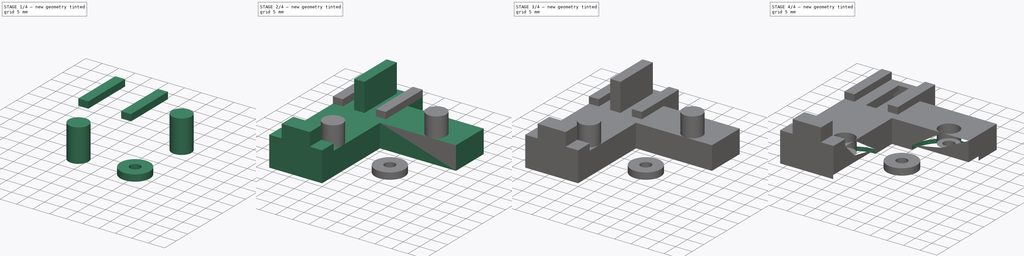
[diagram: build sequence overview — one tinted view per stage of 4, left to right]
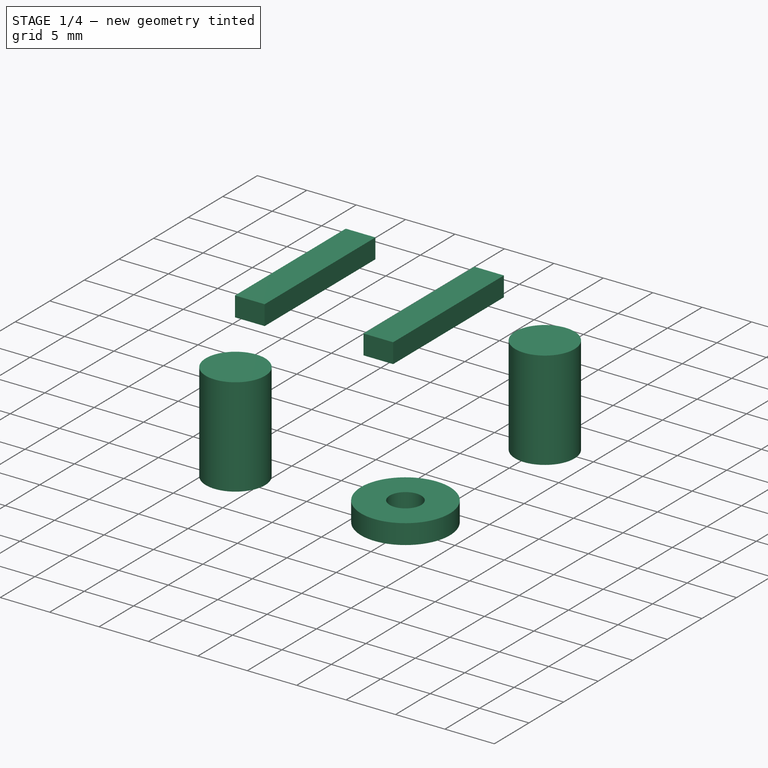
[diagram: stage 1 of 4 — iso view after this stage's code; geometry added in this stage tinted green]
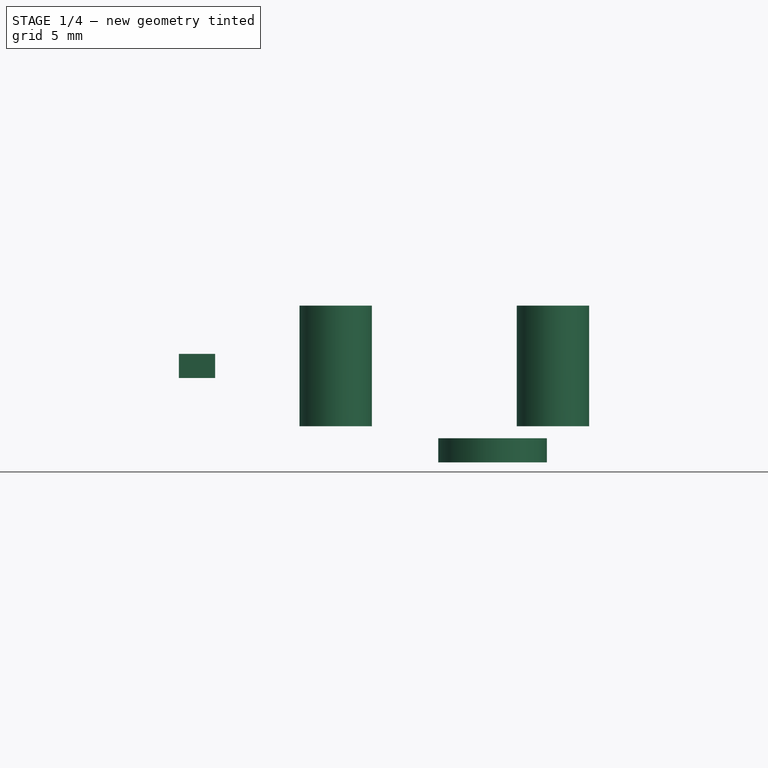
[diagram: stage 1 of 4 — front view after this stage's code; geometry added in this stage tinted green]
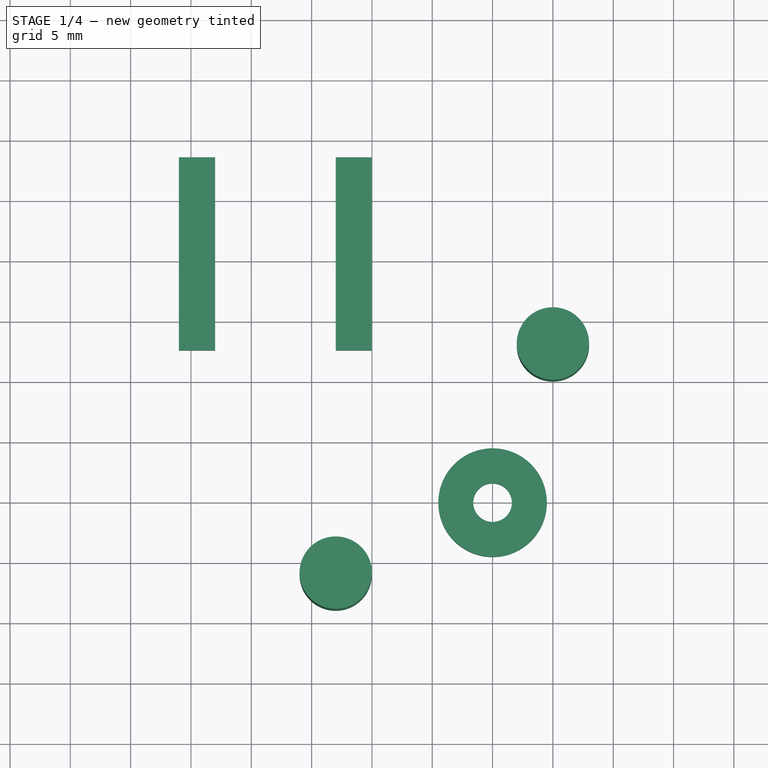
[diagram: stage 1 of 4 — top view after this stage's code; geometry added in this stage tinted green]
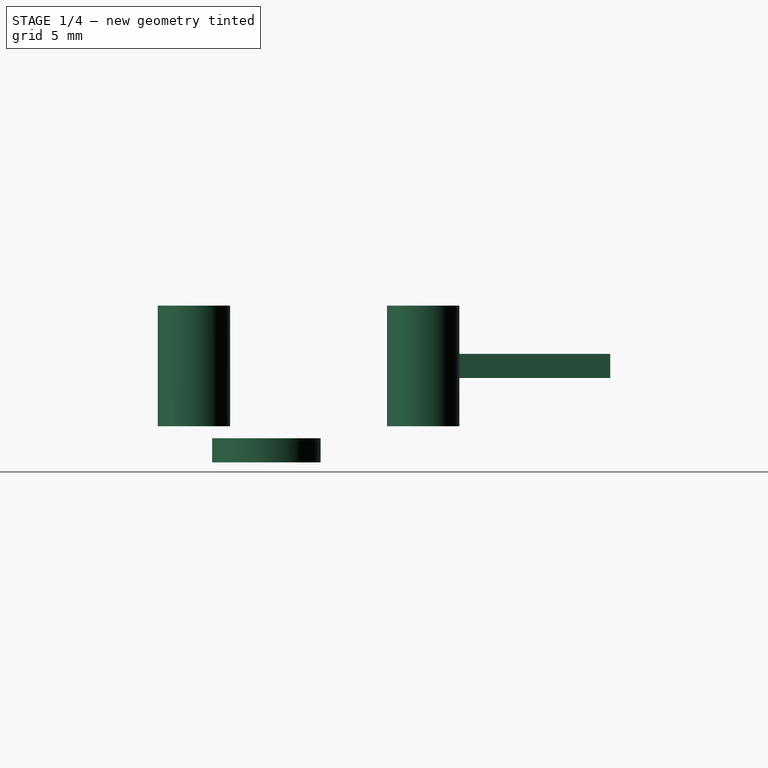
[diagram: stage 1 of 4 — right view after this stage's code; geometry added in this stage tinted green]
FCSTD DOCUMENT  (FreeCAD 0.18R15215 (Git))
Label: JackyTouchSupport
License: All rights reserved
LicenseURL: http://en.wikipedia.org/wiki/All_rights_reserved
objects: Sketcher::SketchObject×9, Part::Extrusion×9, Part::MultiFuse×2, Part::Cut×1
note: 21 computed .brp shape members not serialized (recipe doc carries the construction recipe); baked Part::Feature solids carry a one-line shape summary decoded from their .brp

FEATURE [Sketcher::SketchObject] Sketch007
  sketch-geometry (2):
    g0: Circle CenterX=15 CenterY=3 CenterZ=0 NormalX=0 NormalY=0 NormalZ=1 AngleXU=0 Radius=3
    g1: Circle CenterX=-3 CenterY=-16 CenterZ=0 NormalX=0 NormalY=0 NormalZ=1 AngleXU=0 Radius=3
  constraints (6):
    c: Radius(g1) = 3
    c: Equal(g1,g0)
    c: DistanceY(g-1,g0) = 3
    c: DistanceX(g1,g-1) = 3
    c: DistanceX(g-1,g0) = 15
    c: DistanceY(g1,g-1) = 16
FEATURE [Part::Extrusion] Extrude007  label="Extrude008"
  Base = -> Sketch007
  Dir = (0,0,1)
  DirMode = 2
  FaceMakerClass = Part::FaceMakerBullseye
  LengthFwd = 10
  LengthRev = 0
  Placement = pos=(0,0,3) rot=(0,0,1;0rad)
  Solid = true
  Symmetric = false
FEATURE [Part::Extrusion] Extrude008  label="Extrude009"
  Base = -> Sketch004
  Dir = (0,0,1)
  DirMode = 2
  FaceMakerClass = Part::FaceMakerBullseye
  LengthFwd = 2
  LengthRev = 0
  Placement = pos=(0,0,7) rot=(0,0,1;0rad)
  Solid = true
  Symmetric = false
FEATURE [Sketcher::SketchObject] Sketch008
  sketch-geometry (2):
    g0: Circle CenterX=10 CenterY=-10 CenterZ=0 NormalX=0 NormalY=0 NormalZ=1 AngleXU=0 Radius=4.5
    g1: Circle CenterX=10 CenterY=-10 CenterZ=0 NormalX=0 NormalY=0 NormalZ=1 AngleXU=0 Radius=1.6
  constraints (5):
    c: Coincident(g1,g0)
    c: Radius(g1) = 1.6
    c: Radius(g0) = 4.5
    c: DistanceY(g0) = -10
    c: DistanceX(g0) = 10
FEATURE [Part::Extrusion] Extrude009  label="Entretoise"
  Base = -> Sketch008
  Dir = (0,0,1)
  DirMode = 2
  FaceMakerClass = Part::FaceMakerBullseye
  LengthFwd = 2
  LengthRev = 0
  Solid = true
  Symmetric = false
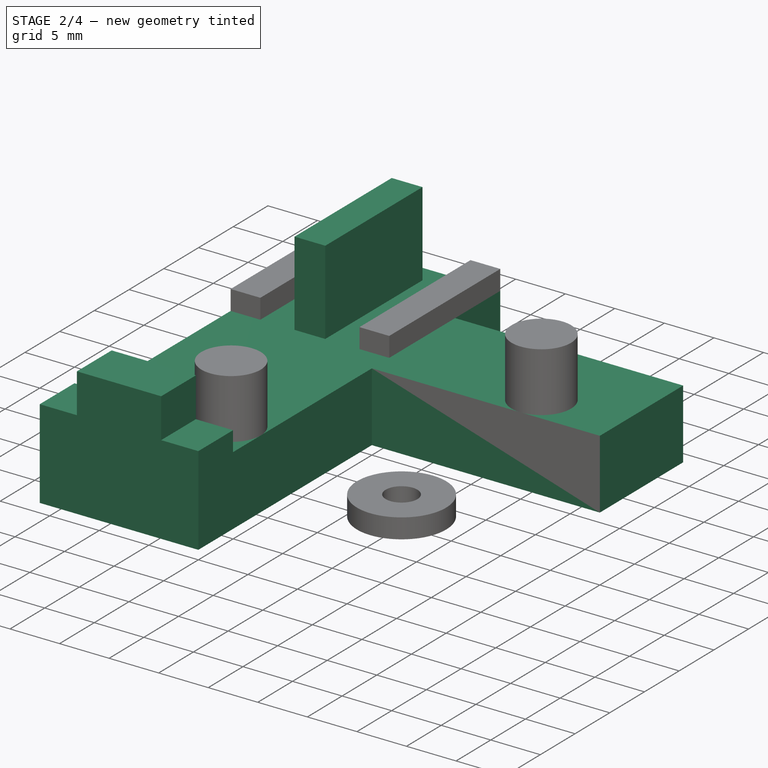
[diagram: stage 2 of 4 — iso view after this stage's code; geometry added in this stage tinted green]
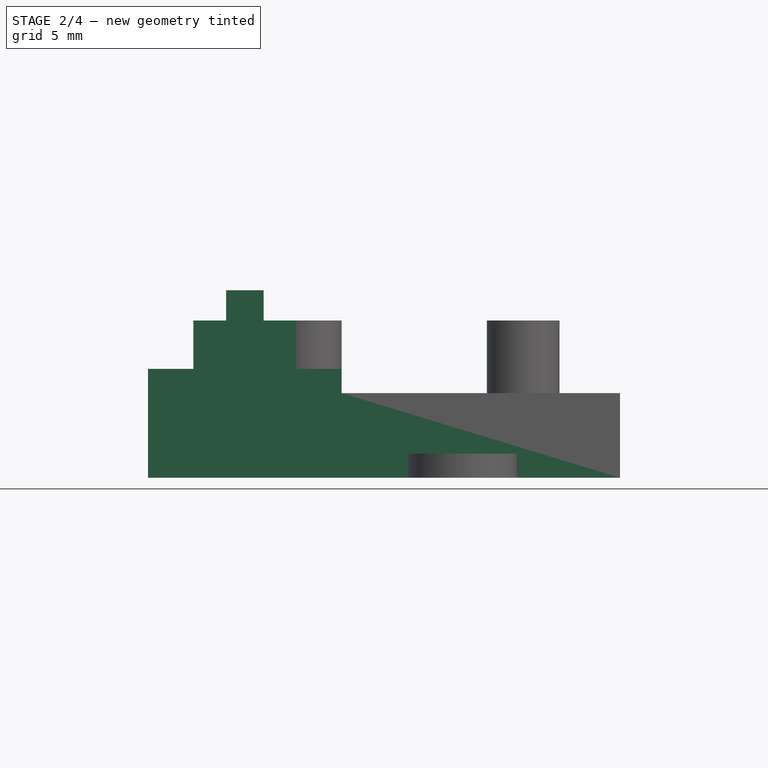
[diagram: stage 2 of 4 — front view after this stage's code; geometry added in this stage tinted green]
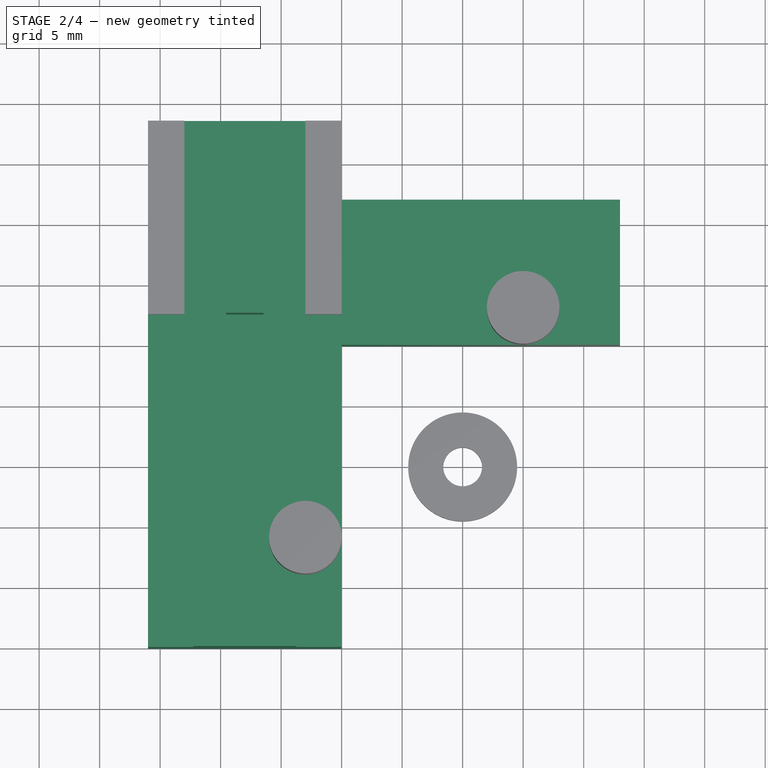
[diagram: stage 2 of 4 — top view after this stage's code; geometry added in this stage tinted green]
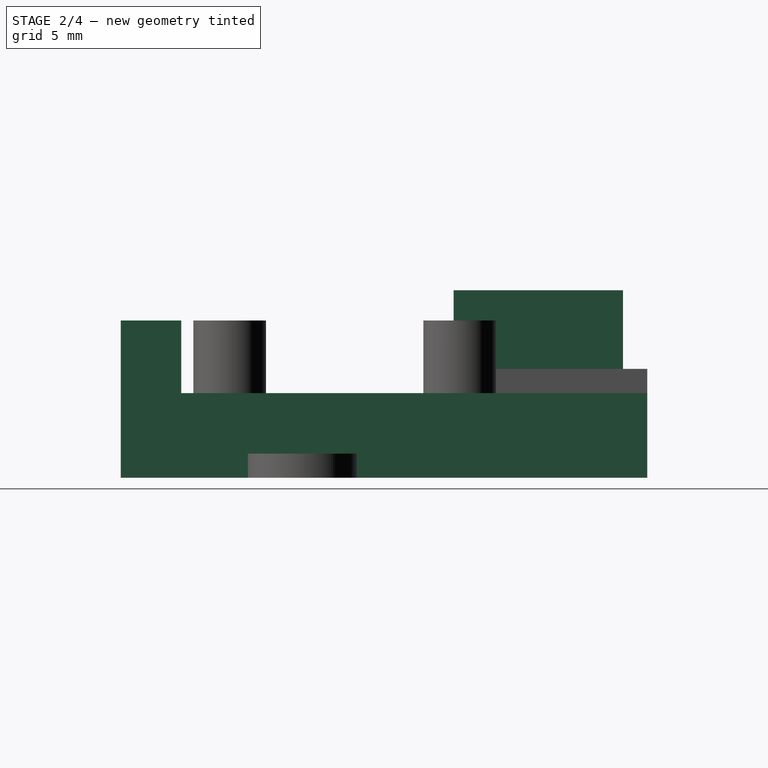
[diagram: stage 2 of 4 — right view after this stage's code; geometry added in this stage tinted green]
FEATURE [Sketcher::SketchObject] Sketch
  sketch-geometry (10):
    g0: LineSegment StartX=-16 StartY=18.5 StartZ=0 EndX=0 EndY=18.5 EndZ=0
    g1: LineSegment StartX=-16 StartY=18.5 StartZ=0 EndX=-16 EndY=-25 EndZ=0
    g2: LineSegment StartX=-16 StartY=-25 StartZ=0 EndX=0 EndY=-25 EndZ=0
    g3: LineSegment StartX=0 StartY=-25 StartZ=0 EndX=0 EndY=0 EndZ=0
    g4: LineSegment StartX=0 StartY=0 StartZ=0 EndX=23 EndY=0 EndZ=0
    g5: LineSegment StartX=23 StartY=0 StartZ=0 EndX=23 EndY=12 EndZ=0
    g6: LineSegment [constr] StartX=-23 StartY=-6.22702 StartZ=0 EndX=-23 EndY=-28.6736 EndZ=0
    g7: Circle [constr] CenterX=-15 CenterY=17 CenterZ=0 NormalX=0 NormalY=0 NormalZ=1 AngleXU=0 Radius=1.55
    g8: LineSegment StartX=0 StartY=18.5 StartZ=0 EndX=0 EndY=12 EndZ=0
    g9: LineSegment StartX=0 StartY=12 StartZ=0 EndX=23 EndY=12 EndZ=0
  constraints (28):
    c: Horizontal(g0)
    c: Vertical(g1)
    c: Coincident(g2,g1)
    c: PointOnObject(g2,g-2)
    c: Horizontal(g2)
    c: Coincident(g3,g2)
    c: Coincident(g3,g-1)
    c: Coincident(g4,g3)
    c: Horizontal(g4)
    c: Coincident(g5,g4)
    c: Vertical(g5)
    c: Coincident(g0,g1)
    c: DistanceX(g1,g2) = 16
    c: Vertical(g6)
    c: DistanceX(g6,g3) = 23
    c: Radius(g7) = 1.55
    c: DistanceY(g3,g7) = 17
    c: DistanceX(g6,g7) = 8
    c: DistanceX(g4) = 23
    c: DistanceY(g2,g3) = 25
    c: Vertical(g8)
    c: Coincident(g9,g8)
    c: Horizontal(g9)
    c: Coincident(g5,g9)
    c: Coincident(g0,g8)
    c: DistanceY(g0) = 18.5
    c: PointOnObject(g0,g-2)
    c: DistanceY(g5) = 12
FEATURE [Part::Extrusion] Extrude  label="Extrude005"
  Base = -> Sketch
  Dir = (0,0,1)
  DirMode = 2
  FaceMakerClass = Part::FaceMakerBullseye
  LengthFwd = 7
  LengthRev = 0
  Solid = true
  Symmetric = false
FEATURE [Sketcher::SketchObject] Sketch004
  sketch-geometry (8):
    g0: LineSegment StartX=-16 StartY=18.5 StartZ=0 EndX=-13 EndY=18.5 EndZ=0
    g1: LineSegment StartX=-13 StartY=18.5 StartZ=0 EndX=-13 EndY=2.5 EndZ=0
    g2: LineSegment StartX=-13 StartY=2.5 StartZ=0 EndX=-16 EndY=2.5 EndZ=0
    g3: LineSegment StartX=-16 StartY=2.5 StartZ=0 EndX=-16 EndY=18.5 EndZ=0
    g4: LineSegment StartX=-3 StartY=18.5 StartZ=0 EndX=0 EndY=18.5 EndZ=0
    g5: LineSegment StartX=0 StartY=18.5 StartZ=0 EndX=0 EndY=2.5 EndZ=0
    g6: LineSegment StartX=0 StartY=2.5 StartZ=0 EndX=-3 EndY=2.5 EndZ=0
    g7: LineSegment StartX=-3 StartY=2.5 StartZ=0 EndX=-3 EndY=18.5 EndZ=0
  constraints (24):
    c: Coincident(g0,g1)
    c: Coincident(g1,g2)
    c: Coincident(g2,g3)
    c: Coincident(g3,g0)
    c: Horizontal(g0)
    c: Horizontal(g2)
    c: Vertical(g1)
    c: Vertical(g3)
    c: Coincident(g4,g5)
    c: Coincident(g5,g6)
    c: Coincident(g6,g7)
    c: Coincident(g7,g4)
    c: Horizontal(g4)
    c: Horizontal(g6)
    c: Vertical(g5)
    c: Vertical(g7)
    c: DistanceX(g4,g4) = 3
    c: DistanceX(g0,g0) = 3
    c: DistanceY(g5,g5) = 16
    c: DistanceY(g1,g1) = 16
    c: DistanceX(g2,g-1) = 16
    c: DistanceX(g5,g-1) = 0
    c: DistanceY(g5) = 2.5
    c: DistanceY(g1) = 2.5
FEATURE [Sketcher::SketchObject] Sketch005
  Placement = pos=(0,0,0) rot=(1,0,0;1.5708rad)
  sketch-geometry (9):
    g0: LineSegment StartX=-16 StartY=0 StartZ=0 EndX=-16 EndY=2 EndZ=0
    g1: LineSegment StartX=-16 StartY=2 StartZ=0 EndX=-12.25 EndY=2 EndZ=0
    g2: LineSegment StartX=-12.25 StartY=2 StartZ=0 EndX=-12.25 EndY=6 EndZ=0
    g3: LineSegment StartX=-12.25 StartY=6 StartZ=0 EndX=-3.75 EndY=6 EndZ=0
    g4: LineSegment StartX=-3.75 StartY=6 StartZ=0 EndX=-3.75 EndY=2 EndZ=0
    g5: LineSegment StartX=-3.75 StartY=2 StartZ=0 EndX=0 EndY=2 EndZ=0
    g6: LineSegment StartX=0 StartY=2 StartZ=0 EndX=0 EndY=0 EndZ=0
    g7: LineSegment StartX=0 StartY=0 StartZ=0 EndX=-16 EndY=0 EndZ=0
    g8: LineSegment [constr] StartX=-8 StartY=12 StartZ=0 EndX=-8 EndY=0 EndZ=0
  constraints (26):
    c: PointOnObject(g0,g-1)
    c: Vertical(g0)
    c: Horizontal(g1)
    c: Coincident(g2,g1)
    c: Vertical(g2)
    c: Coincident(g3,g2)
    c: Horizontal(g3)
    c: Coincident(g4,g3)
    c: Vertical(g4)
    c: Horizontal(g5)
    c: PointOnObject(g6,g-1)
    c: Vertical(g6)
    c: Coincident(g7,g6)
    c: Coincident(g7,g0)
    c: Coincident(g4,g5)
    c: DistanceY(g4,g3) = 4
    c: DistanceY(g6,g5) = 2
    c: DistanceX(g2,g3) = 8.5
    c: DistanceX(g0,g6) = 16
    c: Symmetric(g3,g2,g8)
    c: Symmetric(g5,g0,g8)
    c: Coincident(g1,g0)
    c: Coincident(g5,g6)
    c: DistanceY(g8,g8) = 12
    c: PointOnObject(g8,g-1)
    c: DistanceX(g6,g-1) = 0
FEATURE [Part::Extrusion] Extrude005  label="Extrude006"
  Base = -> Sketch005
  Dir = (0,-1,0)
  DirMode = 2
  FaceMakerClass = Part::FaceMakerBullseye
  LengthFwd = 5
  LengthRev = 0
  Placement = pos=(0,-20,7) rot=(0,0,1;0rad)
  Solid = true
  Symmetric = false
FEATURE [Sketcher::SketchObject] Sketch006
  Placement = pos=(0,0,0) rot=(1,0,0;1.5708rad)
  sketch-geometry (13):
    g0: LineSegment StartX=-9.55 StartY=-1 StartZ=0 EndX=-9.55 EndY=9 EndZ=0
    g1: LineSegment StartX=-9.55 StartY=9 StartZ=0 EndX=-6.45 EndY=9 EndZ=0
    g2: LineSegment StartX=-6.45 StartY=9 StartZ=0 EndX=-6.45 EndY=-1 EndZ=0
    g3: LineSegment StartX=-6.45 StartY=-1 StartZ=0 EndX=-5 EndY=-1 EndZ=0
    g4: LineSegment StartX=-5 StartY=-1 StartZ=0 EndX=-5 EndY=-4 EndZ=0
    g5: LineSegment StartX=-5 StartY=-4 StartZ=0 EndX=-6.45 EndY=-4 EndZ=0
    g6: LineSegment StartX=-11 StartY=-4 StartZ=0 EndX=-11 EndY=-1 EndZ=0
    g7: LineSegment StartX=-11 StartY=-1 StartZ=0 EndX=-9.55 EndY=-1 EndZ=0
    g8: LineSegment [constr] StartX=-8 StartY=9 StartZ=0 EndX=-8 EndY=-4 EndZ=0
    g9: LineSegment StartX=-9.55 StartY=-4 StartZ=0 EndX=-9.55 EndY=-5.5 EndZ=0
    g10: LineSegment StartX=-9.55 StartY=-5.5 StartZ=0 EndX=-6.45 EndY=-5.5 EndZ=0
    g11: LineSegment StartX=-6.45 StartY=-5.5 StartZ=0 EndX=-6.45 EndY=-4 EndZ=0
    g12: LineSegment StartX=-9.55 StartY=-4 StartZ=0 EndX=-11 EndY=-4 EndZ=0
  constraints (37):
    c: Vertical(g0)
    c: Coincident(g1,g0)
    c: Horizontal(g1)
    c: Coincident(g2,g1)
    c: Vertical(g2)
    c: Coincident(g3,g2)
    c: Coincident(g4,g3)
    c: Vertical(g4)
    c: Coincident(g5,g4)
    c: Horizontal(g5)
    c: Coincident(g6,g12)
    c: Vertical(g6)
    c: Coincident(g7,g0)
    c: Horizontal(g7)
    c: Horizontal(g3)
    c: Coincident(g7,g6)
    c: DistanceX(g0,g2) = 3.1
    c: DistanceX(g12,g4) = 6
    c: Symmetric(g0,g2,g8)
    c: Symmetric(g4,g12,g8)
    c: DistanceY(g4,g3) = 3
    c: PointOnObject(g8,g1)
    c: DistanceY(g0,g0) = 10
    c: DistanceY(g3,g-1) = 1
    c: PointOnObject(g9,g5)
    c: Vertical(g9)
    c: DistanceX(g8,g-1) = 8
    c: Coincident(g10,g9)
    c: Horizontal(g10)
    c: Coincident(g11,g10)
    c: Vertical(g11)
    c: Symmetric(g11,g9,g8)
    c: DistanceX(g10,g10) = 3.1
    c: Tangent(g5,g12)
    c: PointOnObject(g12,g9)
    c: Coincident(g11,g5)
    c: DistanceY(g10,g5) = 1.5
FEATURE [Part::Extrusion] Extrude006  label="Extrude007"
  Base = -> Sketch006
  Dir = (0,-1,0)
  DirMode = 2
  FaceMakerClass = Part::FaceMakerBullseye
  LengthFwd = 14
  LengthRev = 0
  Placement = pos=(0,16.5,6.5) rot=(0,0,1;0rad)
  Solid = true
  Symmetric = false
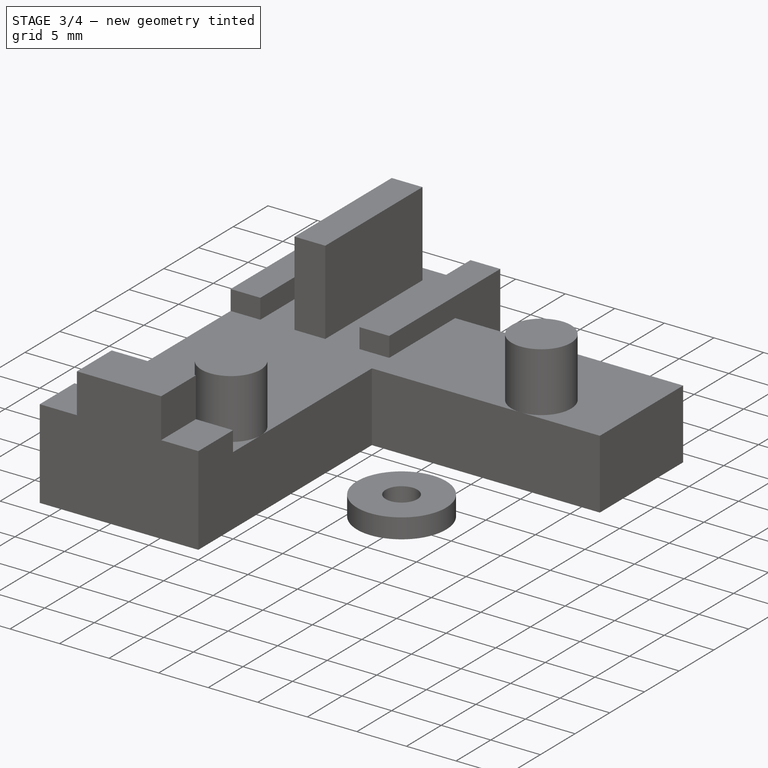
[diagram: stage 3 of 4 — iso view after this stage's code; geometry added in this stage tinted green]
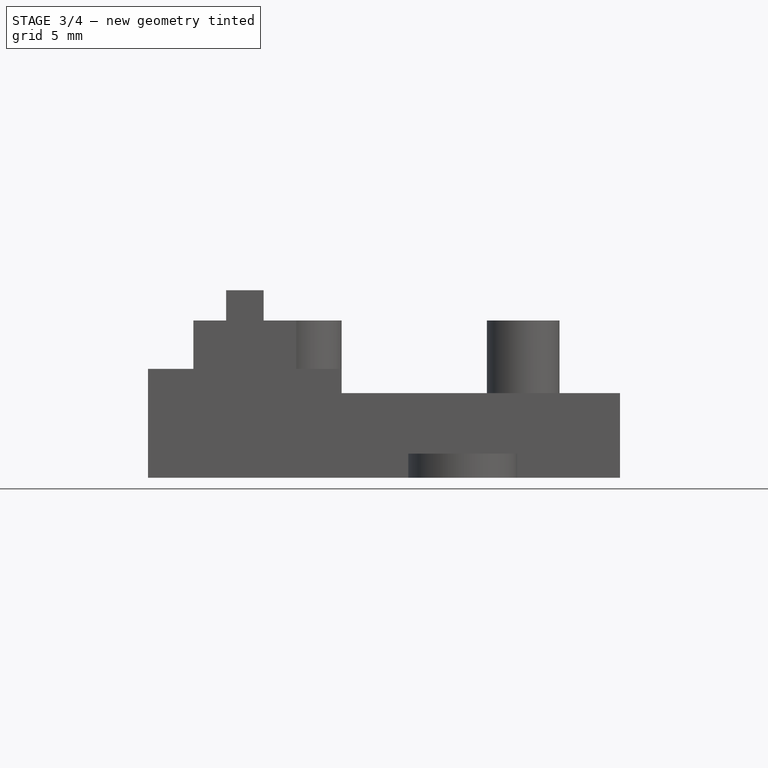
[diagram: stage 3 of 4 — front view after this stage's code; geometry added in this stage tinted green]
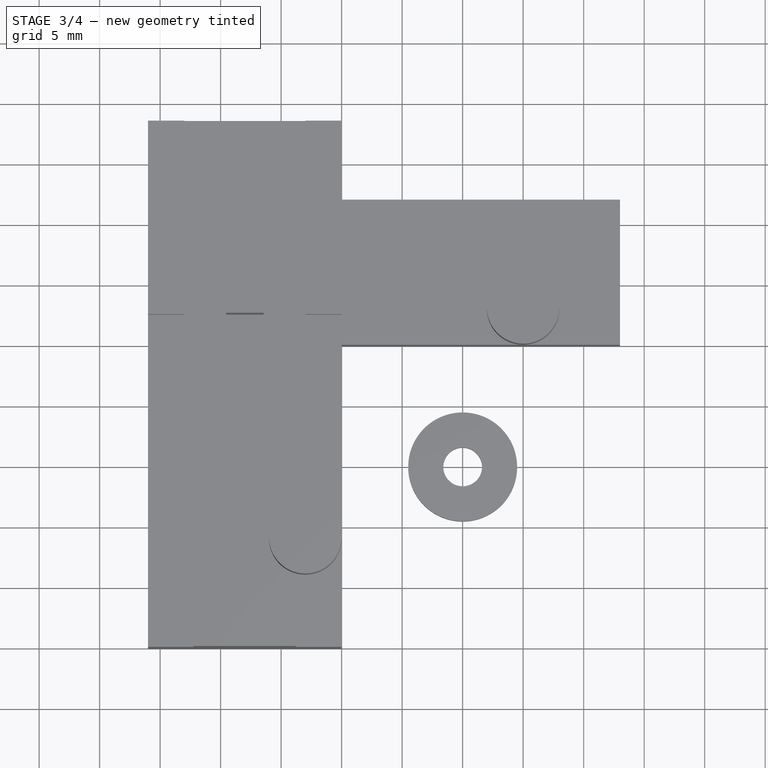
[diagram: stage 3 of 4 — top view after this stage's code; geometry added in this stage tinted green]
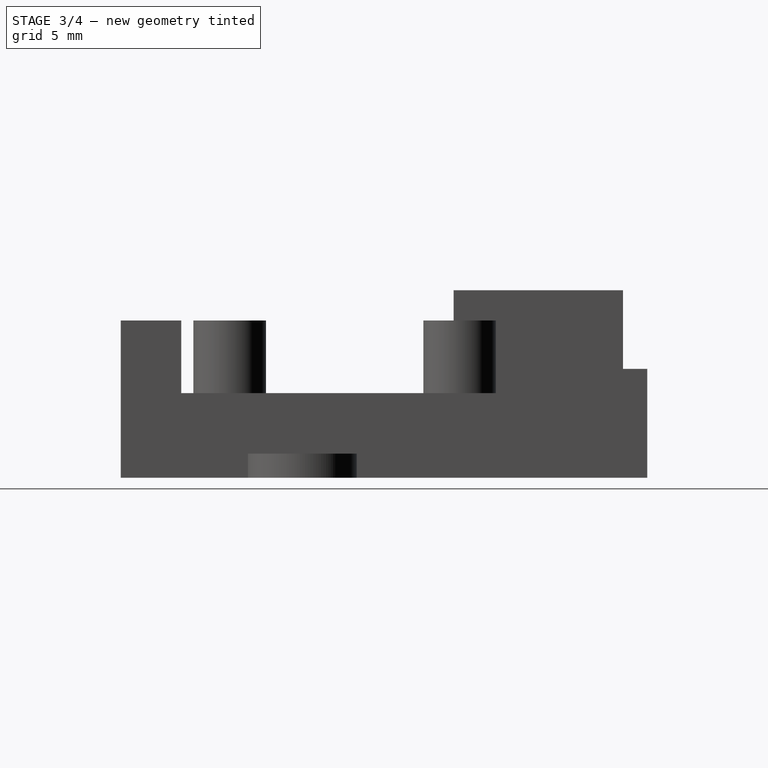
[diagram: stage 3 of 4 — right view after this stage's code; geometry added in this stage tinted green]
FEATURE [Sketcher::SketchObject] Sketch002
  sketch-geometry (2):
    g0: Circle CenterX=15 CenterY=3 CenterZ=0 NormalX=0 NormalY=0 NormalZ=1 AngleXU=0 Radius=1.6
    g1: Circle CenterX=-3 CenterY=-16 CenterZ=0 NormalX=0 NormalY=0 NormalZ=1 AngleXU=0 Radius=1.6
  constraints (6):
    c: DistanceX(g-1,g0) = 15
    c: DistanceY(g1,g-1) = 16
    c: DistanceY(g-1,g0) = 3
    c: DistanceX(g1,g-1) = 3
    c: Radius(g0) = 1.6
    c: Equal(g0,g1)
FEATURE [Part::Extrusion] Extrude002
  Base = -> Sketch002
  Dir = (0,0,1)
  DirMode = 2
  FaceMakerClass = Part::FaceMakerBullseye
  LengthFwd = 8
  LengthRev = 0
  Solid = true
  Symmetric = false
FEATURE [Sketcher::SketchObject] Sketch003
  sketch-geometry (1):
    g0: Circle CenterX=-4 CenterY=6 CenterZ=0 NormalX=0 NormalY=0 NormalZ=1 AngleXU=0 Radius=5.5
  constraints (3):
    c: Radius(g0) = 5.5
    c: DistanceX(g0,g-1) = 4
    c: DistanceY(g-1,g0) = 6
FEATURE [Part::Extrusion] Extrude003
  Base = -> Sketch003
  Dir = (0,0,1)
  DirMode = 2
  FaceMakerClass = Part::FaceMakerBullseye
  LengthFwd = 3.5
  LengthRev = 0
  Solid = true
  Symmetric = false
FEATURE [Part::MultiFuse] Fusion001  label="Body"
  Shapes = -> [Extrude,Extrude005,Extrude008]
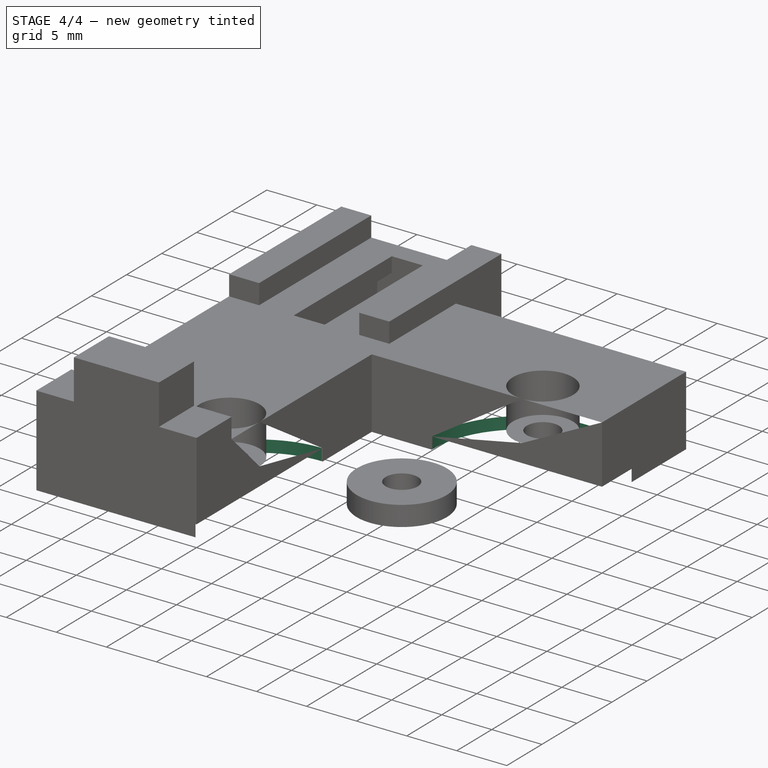
[diagram: stage 4 of 4 — iso view after this stage's code; geometry added in this stage tinted green]
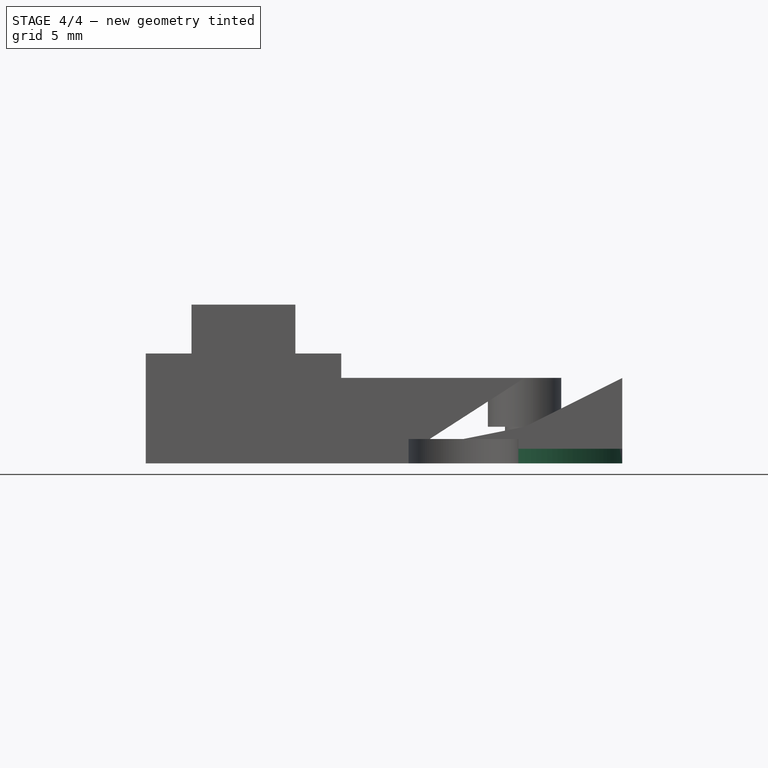
[diagram: stage 4 of 4 — front view after this stage's code; geometry added in this stage tinted green]
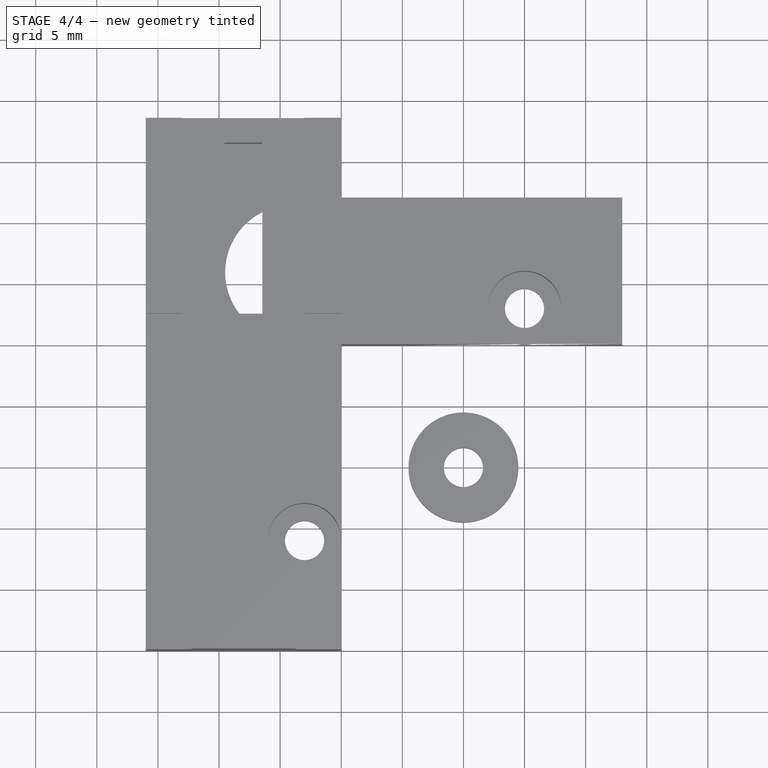
[diagram: stage 4 of 4 — top view after this stage's code; geometry added in this stage tinted green]
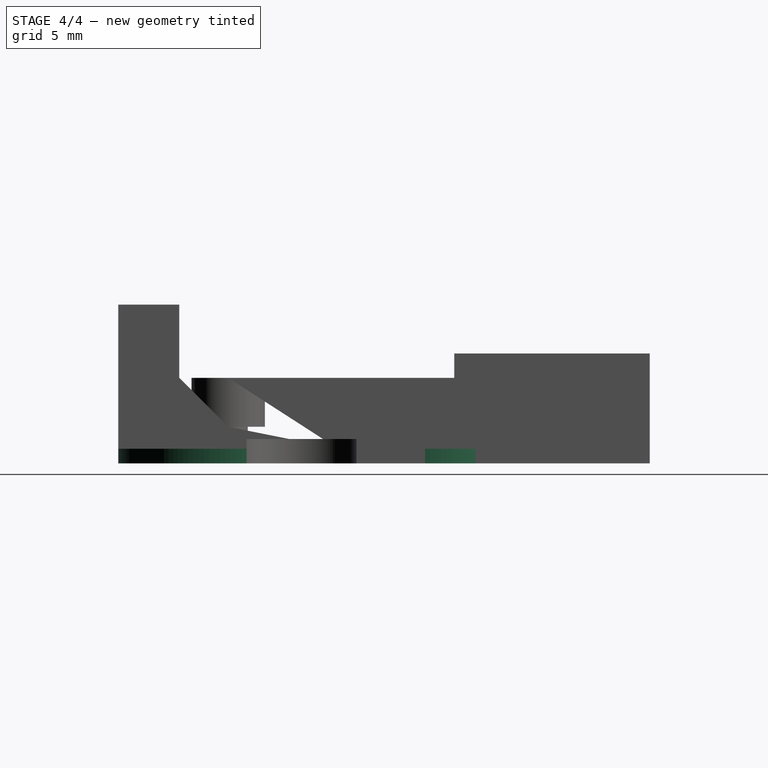
[diagram: stage 4 of 4 — right view after this stage's code; geometry added in this stage tinted green]
FEATURE [Sketcher::SketchObject] Sketch001
  sketch-geometry (8):
    g0: ArcOfCircle CenterX=15 CenterY=0.1 CenterZ=0 NormalX=0 NormalY=0 NormalZ=1 AngleXU=0 Radius=9 StartAngle=0 EndAngle=3.14159
    g1: ArcOfCircle CenterX=-0.1 CenterY=-16 CenterZ=0 NormalX=0 NormalY=0 NormalZ=1 AngleXU=0 Radius=9 StartAngle=1.5708 EndAngle=4.71239
    g2: LineSegment StartX=-0.1 StartY=-7 StartZ=0 EndX=0 EndY=-7 EndZ=0
    g3: LineSegment StartX=-0.1 StartY=-25 StartZ=0 EndX=0 EndY=-25 EndZ=0
    g4: LineSegment StartX=6 StartY=0.1 StartZ=0 EndX=6 EndY=0 EndZ=0
    g5: LineSegment StartX=24 StartY=0.1 StartZ=0 EndX=24 EndY=0 EndZ=0
    g6: LineSegment StartX=0 StartY=-25 StartZ=0 EndX=0 EndY=-7 EndZ=0
    g7: LineSegment StartX=6 StartY=0 StartZ=0 EndX=24 EndY=0 EndZ=0
  constraints (22):
    c: DistanceY(g1,g-1) = 16
    c: DistanceX(g-1,g0) = 15
    c: Horizontal(g2)
    c: Horizontal(g3)
    c: Vertical(g4)
    c: Vertical(g5)
    c: PointOnObject(g3,g-2)
    c: PointOnObject(g2,g-2)
    c: PointOnObject(g4,g-1)
    c: PointOnObject(g5,g-1)
    c: Tangent(g4,g0) = -1.5708
    c: Tangent(g5,g0) = 1.5708
    c: Tangent(g3,g1) = -1.5708
    c: Coincident(g6,g3)
    c: Coincident(g6,g2)
    c: Coincident(g7,g4)
    c: Coincident(g7,g5)
    c: Tangent(g1,g2) = 1.5708
    c: Radius(g0) = 9
    c: Equal(g0,g1)
    c: DistanceX(g2,g2) = 0.1
    c: DistanceY(g4,g4) = 0.1
FEATURE [Part::Extrusion] Extrude001
  Base = -> Sketch001
  Dir = (0,0,1)
  DirMode = 2
  FaceMakerClass = Part::FaceMakerBullseye
  LengthFwd = 1.2
  LengthRev = 0
  Solid = true
  Symmetric = false
FEATURE [Part::MultiFuse] Fusion
  Shapes = -> [Extrude001,Extrude002,Extrude003,Extrude006,Extrude007]
FEATURE [Part::Cut] Cut
  Base = -> Fusion001
  Tool = -> Fusion
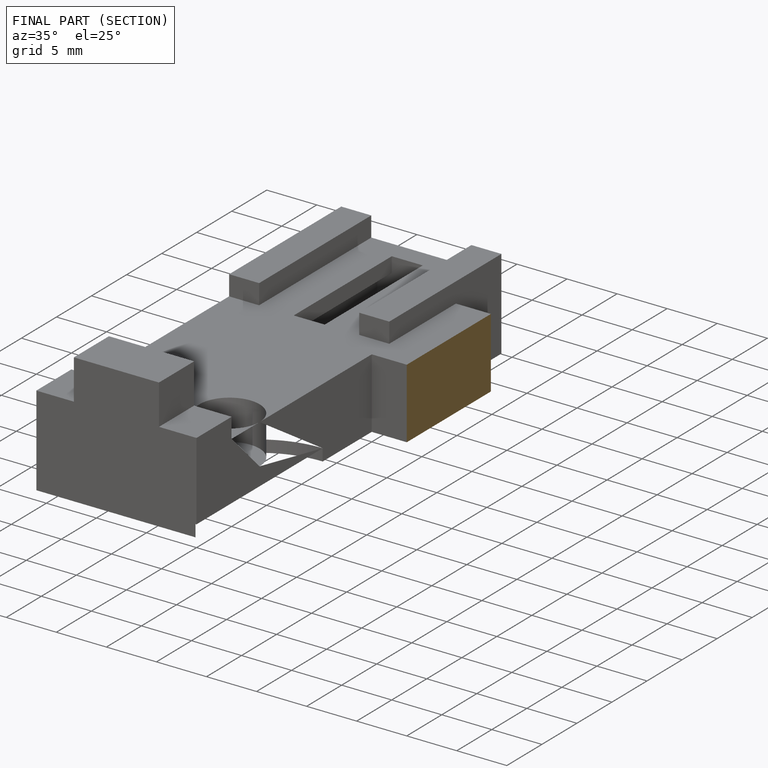
[diagram: finished part — half-section view (interior)]
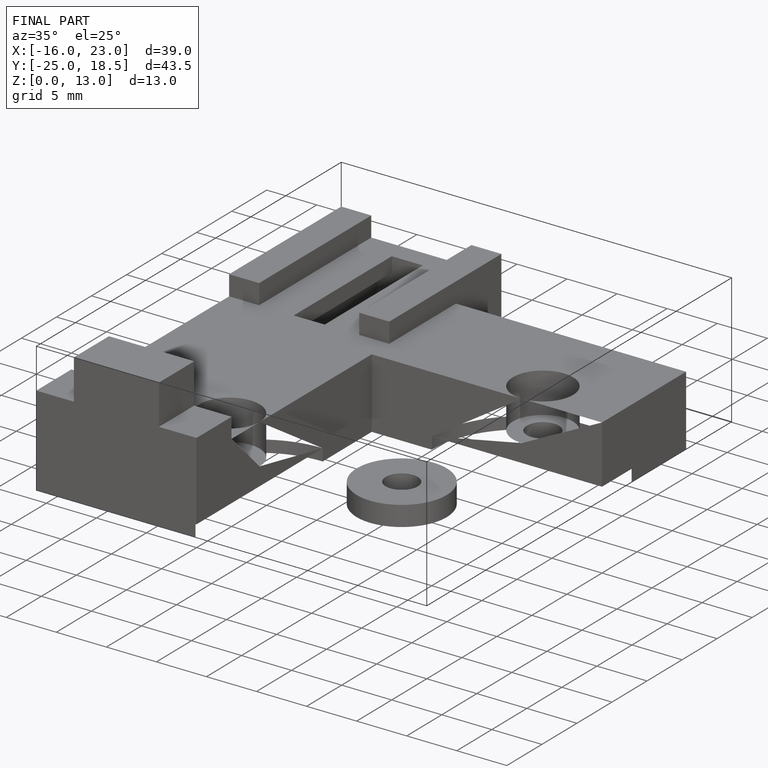
[diagram: finished part — iso view with bounding-box wireframe]
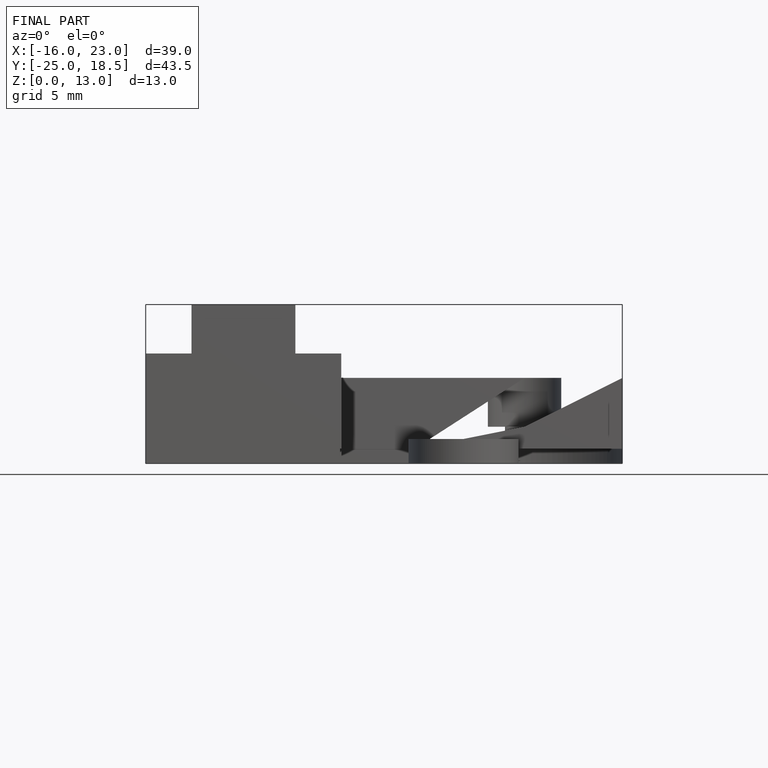
[diagram: finished part — front view with bounding-box wireframe]
